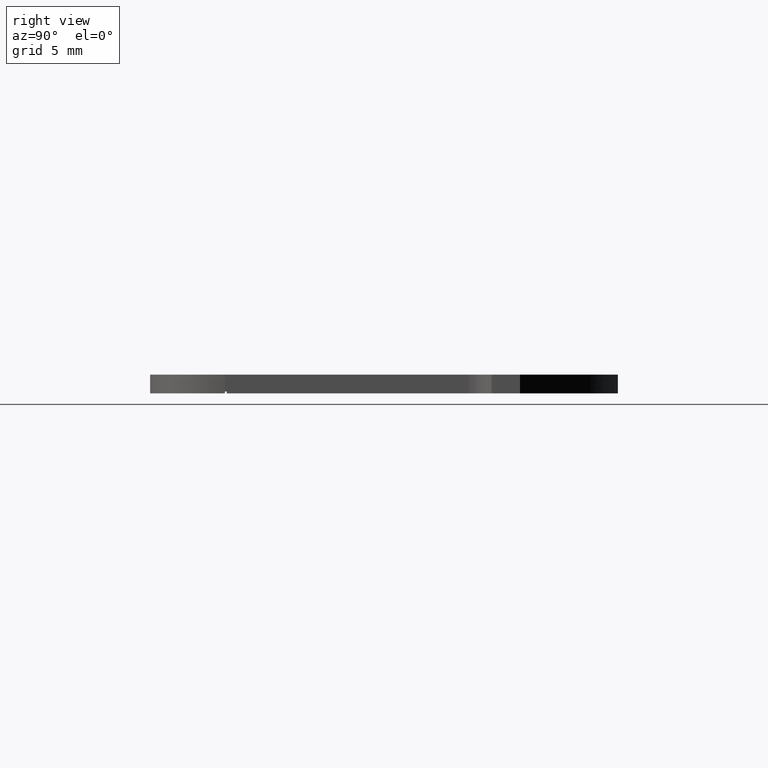
[diagram: clean part render]
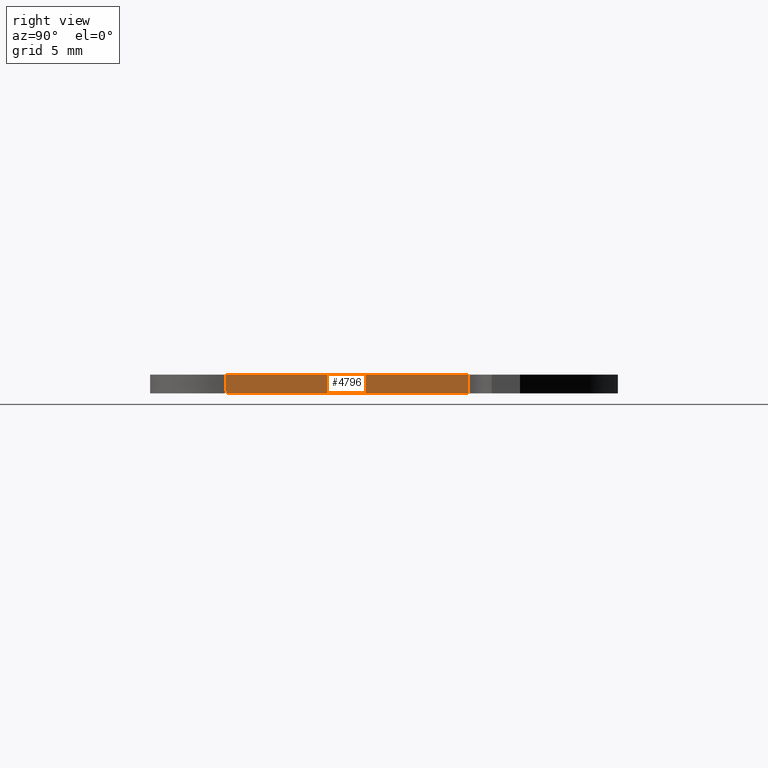
[diagram: same view with one face highlighted and labeled with its STEP entity id]
A machine part, right view. The second image highlights one B-rep face of the part: STEP entity #4796.
In plain terms, the highlighted planar face has unit normal (-1, 0, 0).
Its self-contained STEP definition (entity closure, byte-faithful):
#79 = CARTESIAN_POINT ( 'NONE',  ( 11.42999999999999972, -0.05080000000001218263, 1.270000000000000018 ) ) ;
#634 = VECTOR ( 'NONE', #2248, 1000.000000000000000 ) ;
#716 = LINE ( 'NONE', #1368, #2676 ) ;
#859 = EDGE_CURVE ( 'NONE', #1627, #4931, #940, .T. ) ;
#882 = EDGE_LOOP ( 'NONE', ( #3785, #3014, #3668, #4688, #1782, #1951 ) ) ;
#904 = CARTESIAN_POINT ( 'NONE',  ( 11.42999999999999972, 0.05244465000000140403, 0.1300000000000000044 ) ) ;
#940 = LINE ( 'NONE', #2084, #4432 ) ;
#953 = EDGE_CURVE ( 'NONE', #4931, #4305, #3325, .T. ) ;
#999 = CARTESIAN_POINT ( 'NONE',  ( 11.42999999999999972, 16.40839999999998966, 0.000000000000000000 ) ) ;
#1026 = VECTOR ( 'NONE', #4107, 1000.000000000000000 ) ;
#1042 = DIRECTION ( 'NONE',  ( 0.000000000000000000, 1.000000000000000000, 0.000000000000000000 ) ) ;
#1368 = CARTESIAN_POINT ( 'NONE',  ( 11.42999999999999972, -0.05080000000001218263, 1.270000000000000018 ) ) ;
#1462 = AXIS2_PLACEMENT_3D ( 'NONE', #4903, #4147, #3792 ) ;
#1463 = CARTESIAN_POINT ( 'NONE',  ( 11.42999999999999972, -0.05080000000001218263, 0.1300000000000000044 ) ) ;
#1627 = VERTEX_POINT ( 'NONE', #904 ) ;
#1742 = CARTESIAN_POINT ( 'NONE',  ( 11.42999999999999972, -0.05080000000001218263, 0.000000000000000000 ) ) ;
#1782 = ORIENTED_EDGE ( 'NONE', *, *, #3063, .F. ) ;
#1902 = VERTEX_POINT ( 'NONE', #4232 ) ;
#1951 = ORIENTED_EDGE ( 'NONE', *, *, #4803, .T. ) ;
#1952 = VECTOR ( 'NONE', #1042, 1000.000000000000000 ) ;
#2036 = LINE ( 'NONE', #1463, #1026 ) ;
#2084 = CARTESIAN_POINT ( 'NONE',  ( 11.42999999999999972, 0.05244465000000140403, 0.1300000000000000044 ) ) ;
#2193 = EDGE_CURVE ( 'NONE', #1627, #1902, #2036, .T. ) ;
#2248 = DIRECTION ( 'NONE',  ( -0.000000000000000000, -0.000000000000000000, -1.000000000000000000 ) ) ;
#2400 = DIRECTION ( 'NONE',  ( -0.000000000000000000, -0.000000000000000000, -1.000000000000000000 ) ) ;
#2522 = DIRECTION ( 'NONE',  ( -0.000000000000000000, -0.000000000000000000, -1.000000000000000000 ) ) ;
#2572 = PLANE ( 'NONE',  #1462 ) ;
#2676 = VECTOR ( 'NONE', #4046, 1000.000000000000000 ) ;
#3014 = ORIENTED_EDGE ( 'NONE', *, *, #859, .T. ) ;
#3063 = EDGE_CURVE ( 'NONE', #3436, #3945, #716, .T. ) ;
#3169 = EDGE_CURVE ( 'NONE', #3945, #4305, #4412, .T. ) ;
#3248 = CARTESIAN_POINT ( 'NONE',  ( 11.42999999999999972, 16.40839999999998966, 1.270000000000000018 ) ) ;
#3262 = CARTESIAN_POINT ( 'NONE',  ( 11.42999999999999972, 16.40839999999998966, 1.270000000000000018 ) ) ;
#3325 = LINE ( 'NONE', #1742, #1952 ) ;
#3381 = VECTOR ( 'NONE', #2522, 1000.000000000000000 ) ;
#3436 = VERTEX_POINT ( 'NONE', #79 ) ;
#3438 = FACE_OUTER_BOUND ( 'NONE', #882, .T. ) ;
#3668 = ORIENTED_EDGE ( 'NONE', *, *, #953, .T. ) ;
#3785 = ORIENTED_EDGE ( 'NONE', *, *, #2193, .F. ) ;
#3792 = DIRECTION ( 'NONE',  ( 0.000000000000000000, 0.000000000000000000, 1.000000000000000000 ) ) ;
#3945 = VERTEX_POINT ( 'NONE', #3262 ) ;
#4046 = DIRECTION ( 'NONE',  ( 0.000000000000000000, 1.000000000000000000, 0.000000000000000000 ) ) ;
#4107 = DIRECTION ( 'NONE',  ( -0.000000000000000000, -1.000000000000000000, -0.000000000000000000 ) ) ;
#4147 = DIRECTION ( 'NONE',  ( -1.000000000000000000, 0.000000000000000000, 0.000000000000000000 ) ) ;
#4177 = CARTESIAN_POINT ( 'NONE',  ( 11.42999999999999972, -0.05080000000001218263, 1.270000000000000018 ) ) ;
#4232 = CARTESIAN_POINT ( 'NONE',  ( 11.42999999999999972, -0.05080000000001156507, 0.1300000000000000044 ) ) ;
#4305 = VERTEX_POINT ( 'NONE', #999 ) ;
#4412 = LINE ( 'NONE', #3248, #3381 ) ;
#4432 = VECTOR ( 'NONE', #2400, 1000.000000000000000 ) ;
#4596 = CARTESIAN_POINT ( 'NONE',  ( 11.42999999999999972, 0.05244465000000140403, 0.000000000000000000 ) ) ;
#4688 = ORIENTED_EDGE ( 'NONE', *, *, #3169, .F. ) ;
#4796 = ADVANCED_FACE ( 'NONE', ( #3438 ), #2572, .F. ) ;
#4803 = EDGE_CURVE ( 'NONE', #3436, #1902, #4818, .T. ) ;
#4818 = LINE ( 'NONE', #4177, #634 ) ;
#4903 = CARTESIAN_POINT ( 'NONE',  ( 11.42999999999999972, -0.05080000000001218263, 1.270000000000000018 ) ) ;
#4931 = VERTEX_POINT ( 'NONE', #4596 ) ;